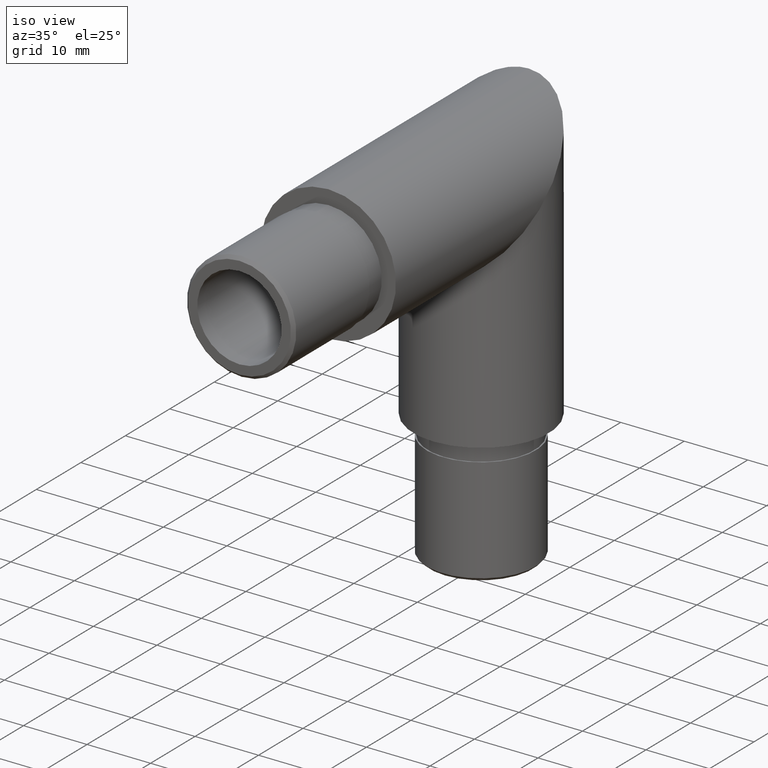
[diagram: clean part render]
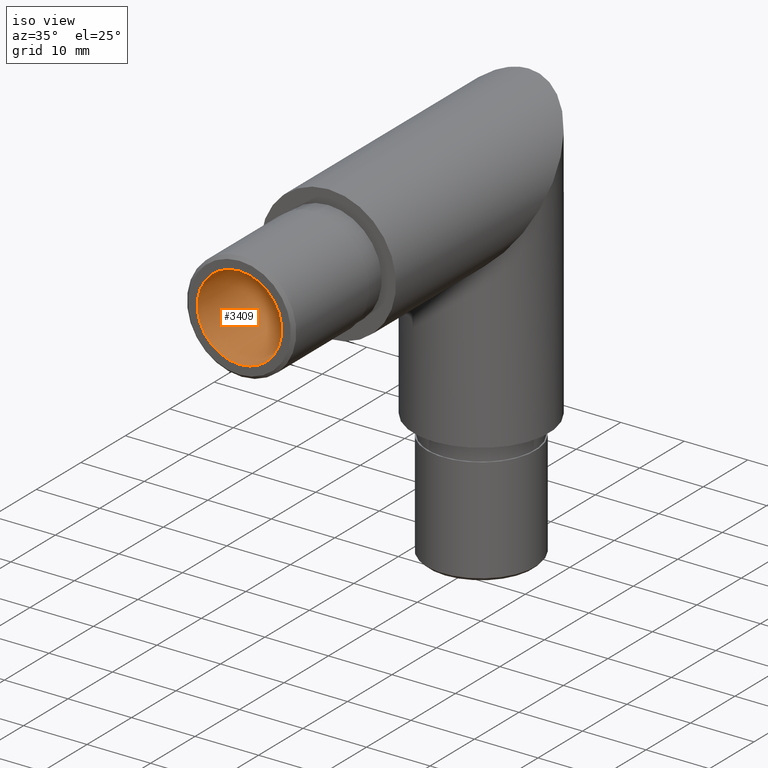
[diagram: same view with one face highlighted and labeled with its STEP entity id]
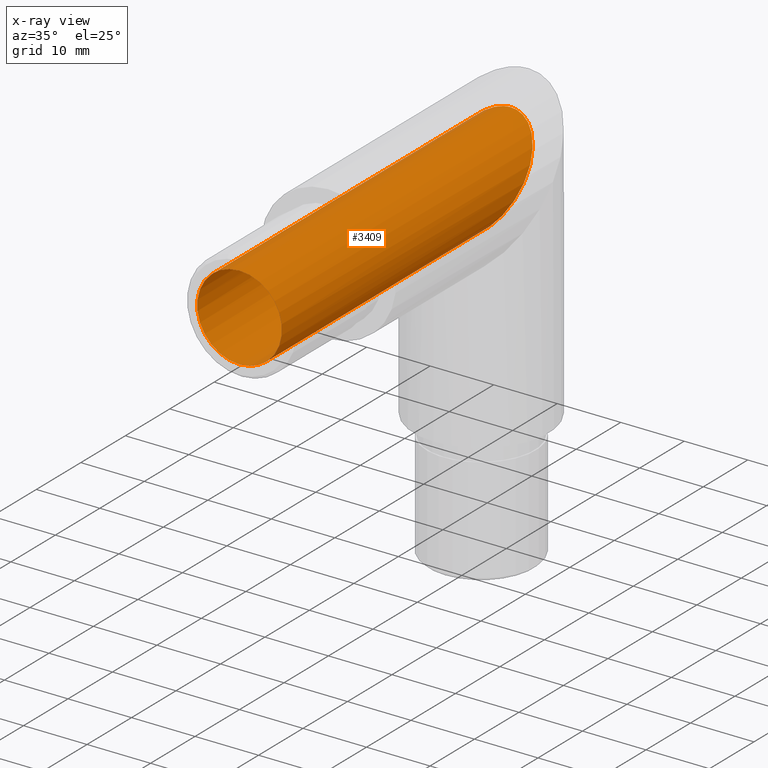
[diagram: x-ray of the same camera — body ghosted, the highlighted face saturated]
A machine part, iso view. The second image highlights one B-rep face of the part: STEP entity #3409.
The next image is the same camera in x-ray: the body ghosted, the highlighted face saturated — about 1% of this face is hidden behind the body in this view.
In plain terms, the highlighted cylindrical surface (bore or boss wall) has radius 6.65 mm, axis along (-0, -1, -0).
Its self-contained STEP definition (entity closure, byte-faithful):
#777 = AXIS2_PLACEMENT_3D ( 'NONE', #13125, #869, #1884 ) ;
#869 = DIRECTION ( 'NONE',  ( -0.0000000000000000000, -1.000000000000000000, -0.0000000000000000000 ) ) ;
#1076 = CARTESIAN_POINT ( 'NONE',  ( -13.29999999999999900, 27.69999999999997400, -6.649999999999999500 ) ) ;
#1884 = DIRECTION ( 'NONE',  ( 0.0000000000000000000, 0.0000000000000000000, -1.000000000000000000 ) ) ;
#2429 = EDGE_LOOP ( 'NONE', ( #5290 ) ) ;
#2595 = FACE_OUTER_BOUND ( 'NONE', #2429, .T. ) ;
#2847 = DIRECTION ( 'NONE',  ( 0.0000000000000000000, -1.000000000000000000, 0.0000000000000000000 ) ) ;
#3409 = ADVANCED_FACE ( 'NONE', ( #5182, #2595 ), #10460, .F. ) ;
#4107 = CARTESIAN_POINT ( 'NONE',  ( -13.29999999999999900, 41.00000000000001400, 6.649999999999998600 ) ) ;
#5182 = FACE_OUTER_BOUND ( 'NONE', #5266, .T. ) ;
#5266 = EDGE_LOOP ( 'NONE', ( #11412 ) ) ;
#5290 = ORIENTED_EDGE ( 'NONE', *, *, #8746, .T. ) ;
#6130 =( BOUNDED_CURVE ( )  B_SPLINE_CURVE ( 3, ( #6174, #1076, #4107, #8185, #12279, #11282, #11244 ),
 .UNSPECIFIED., .T., .T. ) 
 B_SPLINE_CURVE_WITH_KNOTS ( ( 4, 3, 4 ),
 ( 0.0000000000000000000, 3.141592653589793100, 6.283185307179586200 ),
 .UNSPECIFIED. ) 
 CURVE ( )  GEOMETRIC_REPRESENTATION_ITEM ( )  RATIONAL_B_SPLINE_CURVE ( ( 1.000000000000000000, 0.3333333333333333700, 0.3333333333333333700, 1.000000000000000000, 0.3333333333333333700, 0.3333333333333333700, 1.000000000000000000 ) ) 
 REPRESENTATION_ITEM ( '' )  );
#6174 = CARTESIAN_POINT ( 'NONE',  ( 0.0000000000000000000, 27.69999999999997100, -6.649999999999999500 ) ) ;
#6311 = EDGE_CURVE ( 'NONE', #6601, #6601, #6130, .T. ) ;
#6601 = VERTEX_POINT ( 'NONE', #8732 ) ;
#6652 = CIRCLE ( 'NONE', #11820, 6.650000000000000400 ) ;
#6854 = DIRECTION ( 'NONE',  ( 0.0000000000000000000, 0.0000000000000000000, -1.000000000000000000 ) ) ;
#8185 = CARTESIAN_POINT ( 'NONE',  ( -8.143901214329898800E-016, 41.00000000000001400, 6.649999999999999500 ) ) ;
#8732 = CARTESIAN_POINT ( 'NONE',  ( 0.0000000000000000000, 27.69999999999997100, -6.649999999999999500 ) ) ;
#8746 = EDGE_CURVE ( 'NONE', #8995, #8995, #6652, .T. ) ;
#8995 = VERTEX_POINT ( 'NONE', #9810 ) ;
#9810 = CARTESIAN_POINT ( 'NONE',  ( 0.0000000000000000000, -20.00000000000000000, -6.650000000000000400 ) ) ;
#10460 = CYLINDRICAL_SURFACE ( 'NONE', #777, 6.649999999999999500 ) ;
#11244 = CARTESIAN_POINT ( 'NONE',  ( 0.0000000000000000000, 27.69999999999997100, -6.649999999999999500 ) ) ;
#11282 = CARTESIAN_POINT ( 'NONE',  ( 13.29999999999999900, 27.69999999999997400, -6.649999999999999500 ) ) ;
#11412 = ORIENTED_EDGE ( 'NONE', *, *, #6311, .T. ) ;
#11820 = AXIS2_PLACEMENT_3D ( 'NONE', #13045, #2847, #6854 ) ;
#12279 = CARTESIAN_POINT ( 'NONE',  ( 13.29999999999999900, 41.00000000000001400, 6.650000000000002100 ) ) ;
#13045 = CARTESIAN_POINT ( 'NONE',  ( 0.0000000000000000000, -20.00000000000000000, 0.0000000000000000000 ) ) ;
#13125 = CARTESIAN_POINT ( 'NONE',  ( 0.0000000000000000000, 64.47274887854692300, 0.0000000000000000000 ) ) ;